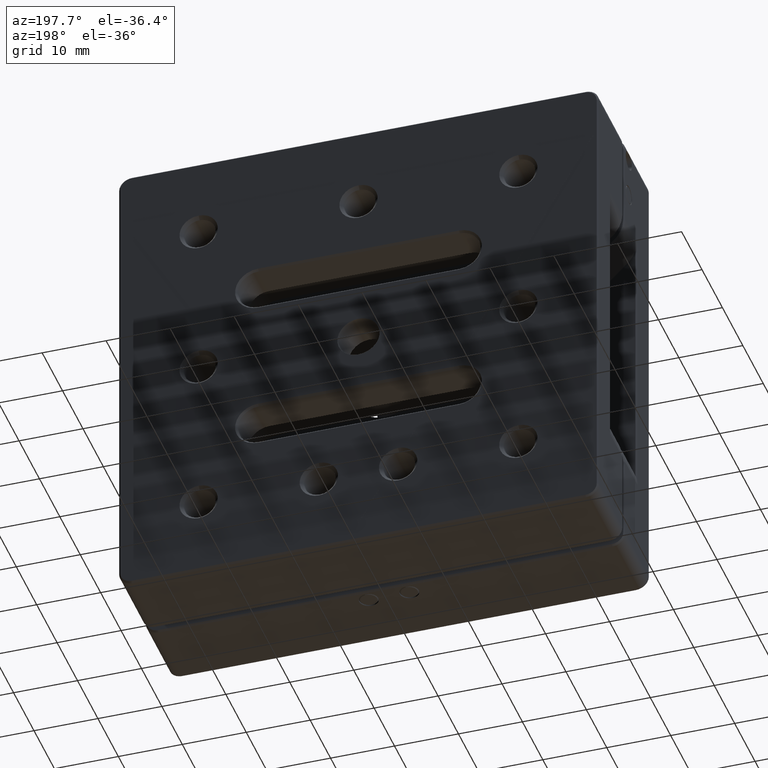
[diagram: clean part render]
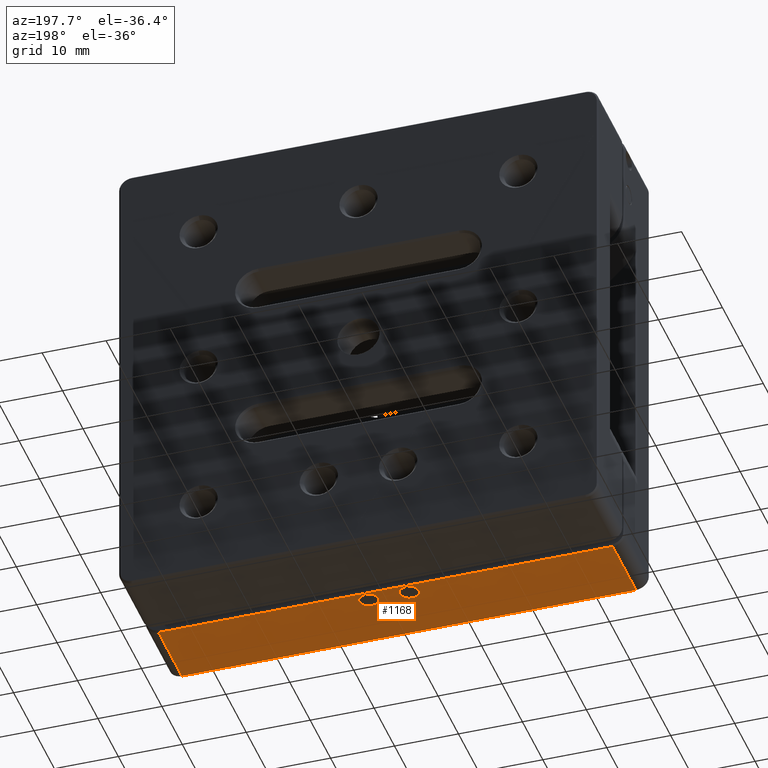
[diagram: same view with one face highlighted and labeled with its STEP entity id]
A machine part, auxiliary view. The second image highlights one B-rep face of the part: STEP entity #1168.
In plain terms, the highlighted planar face has unit normal (0, 0, 1).
Its self-contained STEP definition (entity closure, byte-faithful):
#197 = CIRCLE ( 'NONE', #1009, 1.500000000000001332 ) ;
#205 = AXIS2_PLACEMENT_3D ( 'NONE', #6755, #4728, #6124 ) ;
#685 = EDGE_CURVE ( 'NONE', #7146, #6434, #197, .T. ) ;
#729 = AXIS2_PLACEMENT_3D ( 'NONE', #1152, #8680, #5879 ) ;
#908 = VECTOR ( 'NONE', #7450, 1000.000000000000000 ) ;
#963 = CARTESIAN_POINT ( 'NONE',  ( -35.50000000000000711, -5.749999999999985789, -37.50000000000000000 ) ) ;
#1009 = AXIS2_PLACEMENT_3D ( 'NONE', #1421, #2077, #2126 ) ;
#1152 = CARTESIAN_POINT ( 'NONE',  ( 3.174999999999999822, 4.000000000000000000, -37.50000000000000000 ) ) ;
#1168 = ADVANCED_FACE ( 'NONE', ( #4664, #7854, #8615 ), #6743, .F. ) ;
#1219 = EDGE_CURVE ( 'NONE', #4532, #7878, #5095, .T. ) ;
#1257 = ORIENTED_EDGE ( 'NONE', *, *, #6838, .T. ) ;
#1421 = CARTESIAN_POINT ( 'NONE',  ( -3.174999999999999822, 4.000000000000000000, -37.50000000000000000 ) ) ;
#1549 = EDGE_CURVE ( 'NONE', #5682, #2343, #2364, .T. ) ;
#1608 = CARTESIAN_POINT ( 'NONE',  ( 3.174999999999999822, 4.000000000000000000, -37.50000000000000000 ) ) ;
#1632 = LINE ( 'NONE', #2507, #1853 ) ;
#1853 = VECTOR ( 'NONE', #2474, 1000.000000000000000 ) ;
#1858 = EDGE_CURVE ( 'NONE', #2343, #5682, #8788, .T. ) ;
#2077 = DIRECTION ( 'NONE',  ( -0.0000000000000000000, 0.0000000000000000000, -1.000000000000000000 ) ) ;
#2126 = DIRECTION ( 'NONE',  ( 1.000000000000000000, 0.0000000000000000000, 0.0000000000000000000 ) ) ;
#2343 = VERTEX_POINT ( 'NONE', #3469 ) ;
#2364 = CIRCLE ( 'NONE', #729, 1.500000000000000222 ) ;
#2375 = EDGE_CURVE ( 'NONE', #6434, #7146, #7589, .T. ) ;
#2433 = CARTESIAN_POINT ( 'NONE',  ( 4.675000000000000711, 4.000000000000000000, -37.50000000000000000 ) ) ;
#2474 = DIRECTION ( 'NONE',  ( -1.000000000000000000, 0.0000000000000000000, 0.0000000000000000000 ) ) ;
#2507 = CARTESIAN_POINT ( 'NONE',  ( -37.50000000000000711, -5.749999999999985789, -37.50000000000000000 ) ) ;
#2510 = LINE ( 'NONE', #5488, #908 ) ;
#2681 = AXIS2_PLACEMENT_3D ( 'NONE', #1608, #8462, #7111 ) ;
#2686 = DIRECTION ( 'NONE',  ( -0.0000000000000000000, 1.000000000000000000, -0.0000000000000000000 ) ) ;
#2692 = CARTESIAN_POINT ( 'NONE',  ( -37.50000000000000711, 6.000000000000000000, -37.50000000000000000 ) ) ;
#2745 = ORIENTED_EDGE ( 'NONE', *, *, #1219, .T. ) ;
#3030 = EDGE_CURVE ( 'NONE', #3466, #4532, #2510, .T. ) ;
#3318 = EDGE_LOOP ( 'NONE', ( #2745, #1257, #7261, #5675 ) ) ;
#3466 = VERTEX_POINT ( 'NONE', #8789 ) ;
#3469 = CARTESIAN_POINT ( 'NONE',  ( 1.674999999999999600, 4.000000000000000000, -37.50000000000000000 ) ) ;
#3619 = VERTEX_POINT ( 'NONE', #963 ) ;
#3893 = CARTESIAN_POINT ( 'NONE',  ( -4.675000000000001599, 4.000000000000000000, -37.50000000000000000 ) ) ;
#4224 = CARTESIAN_POINT ( 'NONE',  ( 35.49999999999999289, -5.749999999999985789, -37.50000000000000000 ) ) ;
#4503 = ORIENTED_EDGE ( 'NONE', *, *, #2375, .F. ) ;
#4532 = VERTEX_POINT ( 'NONE', #8728 ) ;
#4558 = ORIENTED_EDGE ( 'NONE', *, *, #1549, .F. ) ;
#4664 = FACE_BOUND ( 'NONE', #6106, .T. ) ;
#4676 = VECTOR ( 'NONE', #2686, 1000.000000000000000 ) ;
#4728 = DIRECTION ( 'NONE',  ( -0.0000000000000000000, 0.0000000000000000000, -1.000000000000000000 ) ) ;
#4954 = CARTESIAN_POINT ( 'NONE',  ( 35.49999999999999289, 6.000000000000000000, -37.50000000000000000 ) ) ;
#5000 = LINE ( 'NONE', #6736, #4676 ) ;
#5095 = LINE ( 'NONE', #4954, #7963 ) ;
#5096 = CARTESIAN_POINT ( 'NONE',  ( -1.674999999999998490, 4.000000000000000000, -37.50000000000000000 ) ) ;
#5488 = CARTESIAN_POINT ( 'NONE',  ( 35.49999999999999289, 5.750000000000000000, -37.50000000000000000 ) ) ;
#5675 = ORIENTED_EDGE ( 'NONE', *, *, #3030, .T. ) ;
#5682 = VERTEX_POINT ( 'NONE', #2433 ) ;
#5879 = DIRECTION ( 'NONE',  ( -1.000000000000000000, 0.0000000000000000000, 0.0000000000000000000 ) ) ;
#6106 = EDGE_LOOP ( 'NONE', ( #8787, #4558 ) ) ;
#6124 = DIRECTION ( 'NONE',  ( 1.000000000000000000, 0.0000000000000000000, 0.0000000000000000000 ) ) ;
#6237 = DIRECTION ( 'NONE',  ( 0.0000000000000000000, 0.0000000000000000000, 1.000000000000000000 ) ) ;
#6434 = VERTEX_POINT ( 'NONE', #3893 ) ;
#6736 = CARTESIAN_POINT ( 'NONE',  ( -35.50000000000000711, 6.000000000000000000, -37.50000000000000000 ) ) ;
#6743 = PLANE ( 'NONE',  #8645 ) ;
#6755 = CARTESIAN_POINT ( 'NONE',  ( -3.174999999999999822, 4.000000000000000000, -37.50000000000000000 ) ) ;
#6838 = EDGE_CURVE ( 'NONE', #7878, #3619, #1632, .T. ) ;
#6943 = DIRECTION ( 'NONE',  ( 0.0000000000000000000, -1.000000000000000000, 0.0000000000000000000 ) ) ;
#7111 = DIRECTION ( 'NONE',  ( -1.000000000000000000, 0.0000000000000000000, 0.0000000000000000000 ) ) ;
#7146 = VERTEX_POINT ( 'NONE', #5096 ) ;
#7255 = ORIENTED_EDGE ( 'NONE', *, *, #685, .F. ) ;
#7261 = ORIENTED_EDGE ( 'NONE', *, *, #7312, .T. ) ;
#7312 = EDGE_CURVE ( 'NONE', #3619, #3466, #5000, .T. ) ;
#7331 = DIRECTION ( 'NONE',  ( 1.000000000000000000, 0.0000000000000000000, -0.0000000000000000000 ) ) ;
#7450 = DIRECTION ( 'NONE',  ( 1.000000000000000000, 0.0000000000000000000, 0.0000000000000000000 ) ) ;
#7589 = CIRCLE ( 'NONE', #205, 1.500000000000001332 ) ;
#7854 = FACE_BOUND ( 'NONE', #8159, .T. ) ;
#7878 = VERTEX_POINT ( 'NONE', #4224 ) ;
#7963 = VECTOR ( 'NONE', #6943, 1000.000000000000000 ) ;
#8159 = EDGE_LOOP ( 'NONE', ( #4503, #7255 ) ) ;
#8462 = DIRECTION ( 'NONE',  ( 0.0000000000000000000, 0.0000000000000000000, -1.000000000000000000 ) ) ;
#8615 = FACE_OUTER_BOUND ( 'NONE', #3318, .T. ) ;
#8645 = AXIS2_PLACEMENT_3D ( 'NONE', #2692, #6237, #7331 ) ;
#8680 = DIRECTION ( 'NONE',  ( 0.0000000000000000000, 0.0000000000000000000, -1.000000000000000000 ) ) ;
#8728 = CARTESIAN_POINT ( 'NONE',  ( 35.49999999999999289, 5.750000000000000000, -37.50000000000000000 ) ) ;
#8787 = ORIENTED_EDGE ( 'NONE', *, *, #1858, .F. ) ;
#8788 = CIRCLE ( 'NONE', #2681, 1.500000000000000222 ) ;
#8789 = CARTESIAN_POINT ( 'NONE',  ( -35.50000000000000711, 5.750000000000000000, -37.50000000000000000 ) ) ;